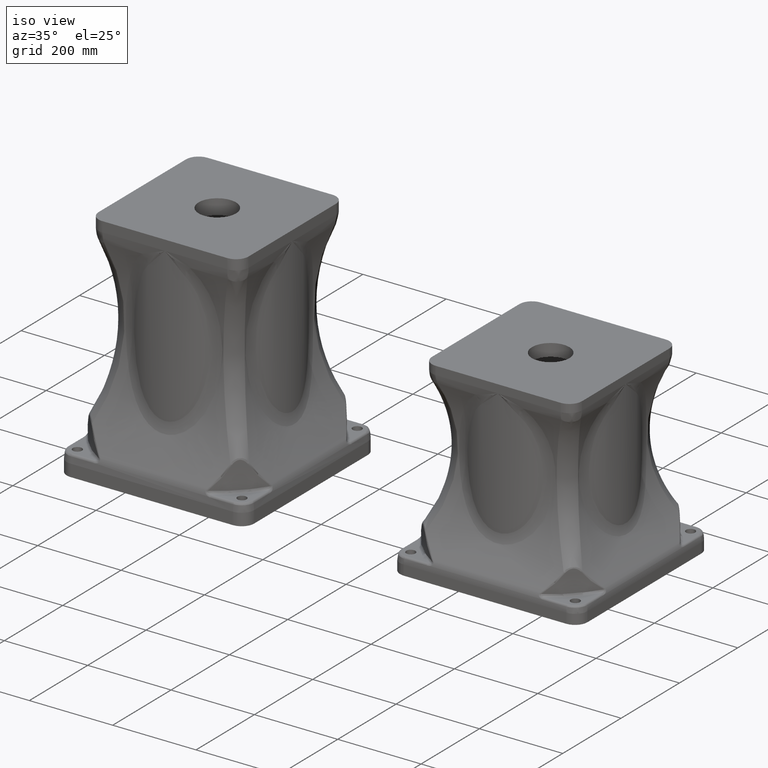
[diagram: clean part render]
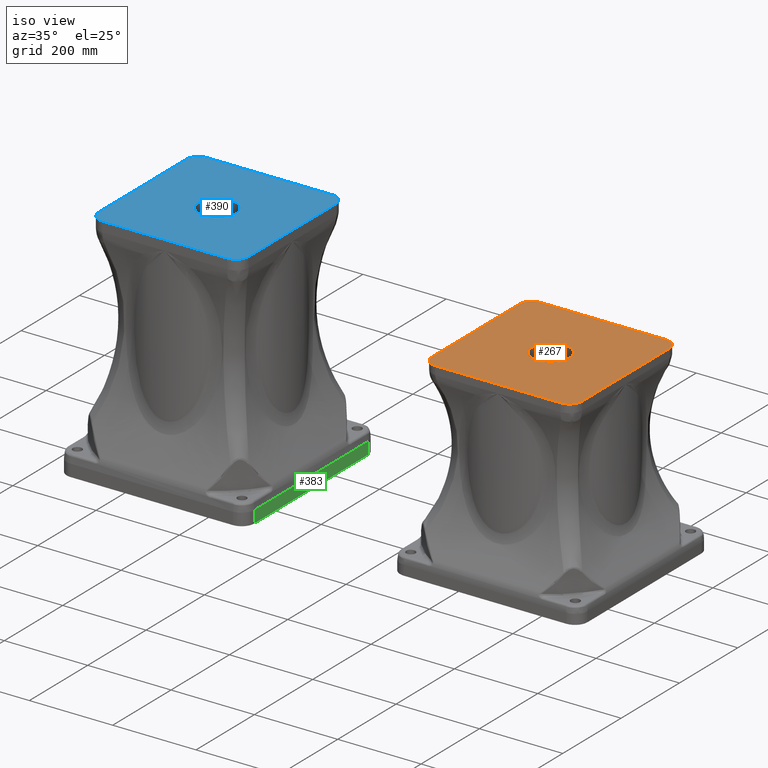
[diagram: same view with three faces highlighted in distinct colors, each labeled with its STEP entity id]
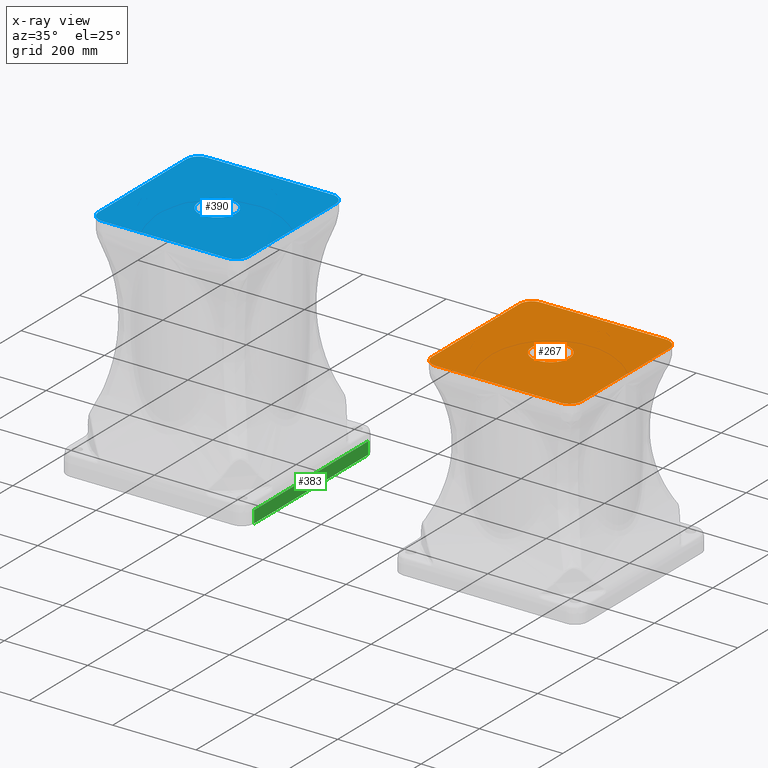
[diagram: x-ray of the same camera — body ghosted, the three highlighted faces saturated]
A machine part, iso view with three faces highlighted in distinct colors.
The next image is the same camera in x-ray (body ghosted, the three faces saturated) — at least one of them is partly hidden behind the body in this view.
Their STEP definitions:

[orange] entity #267 — the highlighted planar face has unit normal (0, 0, 1).
#267=ADVANCED_FACE('',(#569,#570),#571,.T.);
#569=FACE_BOUND('',#8756,.T.);
#570=FACE_OUTER_BOUND('',#8757,.T.);
#571=PLANE('',#8758);
#8756=EDGE_LOOP('',(#20280));
#8757=EDGE_LOOP('',(#20281,#20282,#20283,#20284,#20285,#20286,#20287,#20288));
#8758=AXIS2_PLACEMENT_3D('',#20289,#20290,#20291);
#20280=ORIENTED_EDGE('',*,*,#21888,.F.);
#20281=ORIENTED_EDGE('',*,*,#21889,.T.);
#20282=ORIENTED_EDGE('',*,*,#21870,.T.);
#20283=ORIENTED_EDGE('',*,*,#21890,.T.);
#20284=ORIENTED_EDGE('',*,*,#21863,.T.);
#20285=ORIENTED_EDGE('',*,*,#21891,.T.);
#20286=ORIENTED_EDGE('',*,*,#21860,.T.);
#20287=ORIENTED_EDGE('',*,*,#21892,.T.);
#20288=ORIENTED_EDGE('',*,*,#21893,.T.);
#20289=CARTESIAN_POINT('',(-342.142857142857,-25.0,30.0));
#20290=DIRECTION('',(0.0,0.0,1.0));
#20291=DIRECTION('',(1.0,0.0,0.0));
#21860=EDGE_CURVE('',#22499,#22500,#22501,.T.);
#21863=EDGE_CURVE('',#22504,#22505,#22506,.T.);
#21870=EDGE_CURVE('',#22515,#22516,#22517,.T.);
#21888=EDGE_CURVE('',#22544,#22544,#22545,.T.);
#21889=EDGE_CURVE('',#22546,#22515,#22547,.T.);
#21890=EDGE_CURVE('',#22516,#22504,#22548,.T.);
#21891=EDGE_CURVE('',#22505,#22499,#22549,.T.);
#21892=EDGE_CURVE('',#22500,#22550,#22551,.T.);
#21893=EDGE_CURVE('',#22550,#22546,#22552,.T.);
#22499=VERTEX_POINT('',#28012);
#22500=VERTEX_POINT('',#28013);
#22501=CIRCLE('',#28014,30.0);
#22504=VERTEX_POINT('',#28019);
#22505=VERTEX_POINT('',#28020);
#22506=CIRCLE('',#28021,30.0);
#22515=VERTEX_POINT('',#28032);
#22516=VERTEX_POINT('',#28033);
#22517=CIRCLE('',#28034,30.0);
#22544=VERTEX_POINT('',#28227);
#22545=CIRCLE('',#28228,45.0);
#22546=VERTEX_POINT('',#28229);
#22547=LINE('',#28230,#28231);
#22548=LINE('',#28232,#28233);
#22549=LINE('',#28234,#28235);
#22550=VERTEX_POINT('',#28236);
#22551=LINE('',#28237,#28238);
#22552=CIRCLE('',#28239,30.0);
#28012=CARTESIAN_POINT('',(-342.142857142857,5.0,30.0));
#28013=CARTESIAN_POINT('',(-312.142857142857,-25.0,30.0));
#28014=AXIS2_PLACEMENT_3D('',#34311,#34312,#34313);
#28019=CARTESIAN_POINT('',(-312.142857142857,335.0,30.0));
#28020=CARTESIAN_POINT('',(-342.142857142857,305.0,30.0));
#28021=AXIS2_PLACEMENT_3D('',#34316,#34317,#34318);
#28032=CARTESIAN_POINT('',(17.8571428571429,305.0,30.0));
#28033=CARTESIAN_POINT('',(-12.1428571428571,335.0,30.0));
#28034=AXIS2_PLACEMENT_3D('',#34333,#34334,#34335);
#28227=CARTESIAN_POINT('',(-117.142857142857,155.0,30.0));
#28228=AXIS2_PLACEMENT_3D('',#34368,#34369,#34370);
#28229=CARTESIAN_POINT('',(17.8571428571429,5.0,30.0));
#28230=CARTESIAN_POINT('',(17.8571428571429,-25.0,30.0));
#28231=VECTOR('',#34371,1.0);
#28232=CARTESIAN_POINT('',(17.8571428571429,335.0,30.0));
#28233=VECTOR('',#34372,1.0);
#28234=CARTESIAN_POINT('',(-342.142857142857,335.0,30.0));
#28235=VECTOR('',#34373,1.0);
#28236=CARTESIAN_POINT('',(-12.1428571428572,-25.0,30.0));
#28237=CARTESIAN_POINT('',(-342.142857142857,-25.0,30.0));
#28238=VECTOR('',#34374,1.0);
#28239=AXIS2_PLACEMENT_3D('',#34375,#34376,#34377);
#34311=CARTESIAN_POINT('',(-312.142857142857,5.0,30.0));
#34312=DIRECTION('',(0.0,0.0,1.0));
#34313=DIRECTION('',(1.0,0.0,0.0));
#34316=CARTESIAN_POINT('',(-312.142857142857,305.0,30.0));
#34317=DIRECTION('',(0.0,0.0,1.0));
#34318=DIRECTION('',(1.0,0.0,0.0));
#34333=CARTESIAN_POINT('',(-12.1428571428571,305.0,30.0));
#34334=DIRECTION('',(0.0,0.0,1.0));
#34335=DIRECTION('',(1.0,0.0,0.0));
#34368=CARTESIAN_POINT('',(-162.142857142857,155.0,30.0));
#34369=DIRECTION('',(0.0,0.0,1.0));
#34370=DIRECTION('',(1.0,0.0,0.0));
#34371=DIRECTION('',(0.0,1.0,0.0));
#34372=DIRECTION('',(-1.0,0.0,0.0));
#34373=DIRECTION('',(0.0,-1.0,0.0));
#34374=DIRECTION('',(1.0,0.0,0.0));
#34375=CARTESIAN_POINT('',(-12.1428571428571,5.0,30.0));
#34376=DIRECTION('',(0.0,0.0,1.0));
#34377=DIRECTION('',(1.0,0.0,0.0));

[blue] entity #390 — the highlighted planar face has unit normal (0, 0, 1).
#390=ADVANCED_FACE('',(#839,#840),#841,.T.);
#839=FACE_BOUND('',#16803,.T.);
#840=FACE_OUTER_BOUND('',#16804,.T.);
#841=PLANE('',#16805);
#16803=EDGE_LOOP('',(#21114));
#16804=EDGE_LOOP('',(#21115,#21116,#21117,#21118,#21119,#21120,#21121,#21122));
#16805=AXIS2_PLACEMENT_3D('',#21123,#21124,#21125);
#21114=ORIENTED_EDGE('',*,*,#22154,.F.);
#21115=ORIENTED_EDGE('',*,*,#22137,.T.);
#21116=ORIENTED_EDGE('',*,*,#22116,.T.);
#21117=ORIENTED_EDGE('',*,*,#22147,.T.);
#21118=ORIENTED_EDGE('',*,*,#22031,.T.);
#21119=ORIENTED_EDGE('',*,*,#22133,.T.);
#21120=ORIENTED_EDGE('',*,*,#22096,.T.);
#21121=ORIENTED_EDGE('',*,*,#22142,.T.);
#21122=ORIENTED_EDGE('',*,*,#22100,.T.);
#21123=CARTESIAN_POINT('',(-342.142857142857,-25.0,36.66666666));
#21124=DIRECTION('',(0.0,0.0,1.0));
#21125=DIRECTION('',(1.0,0.0,0.0));
#22031=EDGE_CURVE('',#22766,#22767,#22768,.T.);
#22096=EDGE_CURVE('',#22874,#22875,#22876,.T.);
#22100=EDGE_CURVE('',#22882,#22883,#22884,.T.);
#22116=EDGE_CURVE('',#22909,#22910,#22911,.T.);
#22133=EDGE_CURVE('',#22767,#22874,#22935,.T.);
#22137=EDGE_CURVE('',#22883,#22909,#22940,.T.);
#22142=EDGE_CURVE('',#22875,#22882,#22946,.T.);
#22147=EDGE_CURVE('',#22910,#22766,#22951,.T.);
#22154=EDGE_CURVE('',#22963,#22963,#22964,.T.);
#22766=VERTEX_POINT('',#30612);
#22767=VERTEX_POINT('',#30613);
#22768=(B_SPLINE_CURVE(3,(#30615,#30616,#30617,#30618),.UNSPECIFIED.,.F.,.F.)B_SPLINE_CURVE_WITH_KNOTS((4,4),(0.0,1.0),.UNSPECIFIED.)RATIONAL_B_SPLINE_CURVE((1.0,0.804737854124365,0.804737854124365,1.0))BOUNDED_CURVE()REPRESENTATION_ITEM('')GEOMETRIC_REPRESENTATION_ITEM()CURVE());
#22874=VERTEX_POINT('',#32105);
#22875=VERTEX_POINT('',#32106);
#22876=(B_SPLINE_CURVE(3,(#32108,#32109,#32110,#32111),.UNSPECIFIED.,.F.,.F.)B_SPLINE_CURVE_WITH_KNOTS((4,4),(0.0,1.0),.UNSPECIFIED.)RATIONAL_B_SPLINE_CURVE((1.0,0.804737854124365,0.804737854124365,1.0))BOUNDED_CURVE()REPRESENTATION_ITEM('')GEOMETRIC_REPRESENTATION_ITEM()CURVE());
#22882=VERTEX_POINT('',#32142);
#22883=VERTEX_POINT('',#32143);
#22884=(B_SPLINE_CURVE(3,(#32145,#32146,#32147,#32148),.UNSPECIFIED.,.F.,.F.)B_SPLINE_CURVE_WITH_KNOTS((4,4),(0.0,1.0),.UNSPECIFIED.)RATIONAL_B_SPLINE_CURVE((1.0,0.804737854124365,0.804737854124365,1.0))BOUNDED_CURVE()REPRESENTATION_ITEM('')GEOMETRIC_REPRESENTATION_ITEM()CURVE());
#22909=VERTEX_POINT('',#32397);
#22910=VERTEX_POINT('',#32398);
#22911=(B_SPLINE_CURVE(3,(#32400,#32401,#32402,#32403),.UNSPECIFIED.,.F.,.F.)B_SPLINE_CURVE_WITH_KNOTS((4,4),(0.0,1.0),.UNSPECIFIED.)RATIONAL_B_SPLINE_CURVE((1.0,0.804737854124365,0.804737854124365,1.0))BOUNDED_CURVE()REPRESENTATION_ITEM('')GEOMETRIC_REPRESENTATION_ITEM()CURVE());
#22935=LINE('',#32671,#32672);
#22940=LINE('',#32680,#32681);
#22946=LINE('',#32691,#32692);
#22951=LINE('',#32701,#32702);
#22963=VERTEX_POINT('',#32724);
#22964=CIRCLE('',#32725,45.0);
#30612=CARTESIAN_POINT('',(-312.142857142857,335.0,36.66666666));
#30613=CARTESIAN_POINT('',(-342.142857142857,305.0,36.66666666));
#30615=CARTESIAN_POINT('',(-312.142857142857,335.0,36.66666666));
#30616=CARTESIAN_POINT('',(-329.716450271664,335.0,36.66666666));
#30617=CARTESIAN_POINT('',(-342.142857142857,322.573593128807,36.66666666));
#30618=CARTESIAN_POINT('',(-342.142857142857,305.0,36.66666666));
#32105=CARTESIAN_POINT('',(-342.142857142857,5.0,36.66666666));
#32106=CARTESIAN_POINT('',(-312.142857142857,-25.0,36.66666666));
#32108=CARTESIAN_POINT('',(-342.142857142857,5.0,36.66666666));
#32109=CARTESIAN_POINT('',(-342.142857142857,-12.5735931288071,36.66666666));
#32110=CARTESIAN_POINT('',(-329.716450271664,-25.0,36.66666666));
#32111=CARTESIAN_POINT('',(-312.142857142857,-25.0,36.66666666));
#32142=CARTESIAN_POINT('',(-12.1428571428572,-25.0,36.66666666));
#32143=CARTESIAN_POINT('',(17.8571428571429,5.0,36.66666666));
#32145=CARTESIAN_POINT('',(-12.1428571428572,-25.0,36.66666666));
#32146=CARTESIAN_POINT('',(5.43073598594997,-25.0,36.66666666));
#32147=CARTESIAN_POINT('',(17.8571428571428,-12.5735931288071,36.66666666));
#32148=CARTESIAN_POINT('',(17.8571428571429,5.0,36.66666666));
#32397=CARTESIAN_POINT('',(17.8571428571429,305.0,36.66666666));
#32398=CARTESIAN_POINT('',(-12.1428571428571,335.0,36.66666666));
#32400=CARTESIAN_POINT('',(17.8571428571429,305.0,36.66666666));
#32401=CARTESIAN_POINT('',(17.8571428571428,322.573593128807,36.66666666));
#32402=CARTESIAN_POINT('',(5.43073598595,335.0,36.66666666));
#32403=CARTESIAN_POINT('',(-12.1428571428571,335.0,36.66666666));
#32671=CARTESIAN_POINT('',(-342.142857142857,335.0,36.66666666));
#32672=VECTOR('',#34535,1.0);
#32680=CARTESIAN_POINT('',(17.8571428571429,-25.0,36.66666666));
#32681=VECTOR('',#34539,1.0);
#32691=CARTESIAN_POINT('',(-342.142857142857,-25.0,36.66666666));
#32692=VECTOR('',#34544,1.0);
#32701=CARTESIAN_POINT('',(17.8571428571429,335.0,36.66666666));
#32702=VECTOR('',#34549,1.0);
#32724=CARTESIAN_POINT('',(-162.142857142857,110.0,36.66666666));
#32725=AXIS2_PLACEMENT_3D('',#34565,#34566,#34567);
#34535=DIRECTION('',(0.0,-1.0,0.0));
#34539=DIRECTION('',(0.0,1.0,0.0));
#34544=DIRECTION('',(1.0,0.0,0.0));
#34549=DIRECTION('',(-1.0,0.0,0.0));
#34565=CARTESIAN_POINT('',(-162.142857142857,155.0,36.66666666));
#34566=DIRECTION('',(0.0,7.70988211545248E-017,1.0));
#34567=DIRECTION('',(0.0,-1.0,7.70988211545248E-017));

[green] entity #383 — the highlighted planar face has unit normal (-1, 0, 0).
#383=ADVANCED_FACE('',(#820),#821,.F.);
#820=FACE_OUTER_BOUND('',#16784,.T.);
#821=PLANE('',#16785);
#16784=EDGE_LOOP('',(#21053,#21054,#21055,#21056));
#16785=AXIS2_PLACEMENT_3D('',#21057,#21058,#21059);
#21053=ORIENTED_EDGE('',*,*,#22019,.T.);
#21054=ORIENTED_EDGE('',*,*,#22134,.T.);
#21055=ORIENTED_EDGE('',*,*,#22135,.T.);
#21056=ORIENTED_EDGE('',*,*,#22129,.T.);
#21057=CARTESIAN_POINT('',(62.8571428571429,-70.0,-268.88888884));
#21058=DIRECTION('',(-1.0,0.0,0.0));
#21059=DIRECTION('',(0.0,0.0,1.0));
#22019=EDGE_CURVE('',#22733,#22730,#22744,.F.);
#22129=EDGE_CURVE('',#22926,#22733,#22931,.F.);
#22134=EDGE_CURVE('',#22730,#22936,#22937,.T.);
#22135=EDGE_CURVE('',#22936,#22926,#22938,.T.);
#22730=VERTEX_POINT('',#30341);
#22733=VERTEX_POINT('',#30381);
#22744=LINE('',#30462,#30463);
#22926=VERTEX_POINT('',#32638);
#22931=LINE('',#32663,#32664);
#22936=VERTEX_POINT('',#32673);
#22937=LINE('',#32674,#32675);
#22938=LINE('',#32676,#32677);
#30341=CARTESIAN_POINT('',(62.8571428571429,-40.0,-484.188353722138));
#30381=CARTESIAN_POINT('',(62.8571428571429,350.0,-484.188353722138));
#30462=CARTESIAN_POINT('',(62.8571428571429,-70.0,-484.188353722138));
#30463=VECTOR('',#34511,1.0);
#32638=CARTESIAN_POINT('',(62.8571428571429,350.0,-513.33333324));
#32663=CARTESIAN_POINT('',(62.8571428571429,350.0,-268.88888884));
#32664=VECTOR('',#34531,1.0);
#32673=CARTESIAN_POINT('',(62.8571428571429,-40.0,-513.33333324));
#32674=CARTESIAN_POINT('',(62.8571428571429,-40.0,-268.88888884));
#32675=VECTOR('',#34536,1.0);
#32676=CARTESIAN_POINT('',(62.8571428571429,-70.0,-513.33333324));
#32677=VECTOR('',#34537,1.0);
#34511=DIRECTION('',(0.0,1.0,0.0));
#34531=DIRECTION('',(0.0,0.0,-1.0));
#34536=DIRECTION('',(0.0,0.0,-1.0));
#34537=DIRECTION('',(0.0,1.0,0.0));